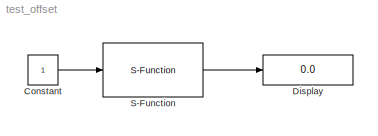
MODEL test_offset
KIND model
BLOCK [Constant] Constant
  SID = 1
BLOCK [Display] Display
  Decimation = 1
  Lockdown = off
  Ports = [1]
  SID = 2
BLOCK [S-Function] S-Function
  EnableBusSupport = off
  FunctionName = sfun_offset
  Parameters = 3
  Ports = [1, 1]
  SID = 3
LINE Constant:1 -> S-Function:1
LINE S-Function:1 -> Display:1
